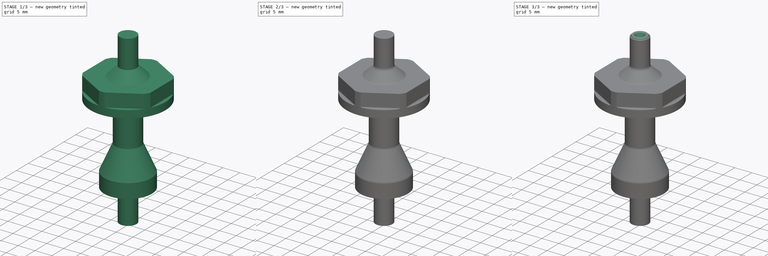
[diagram: build sequence overview — one tinted view per stage of 3, left to right]
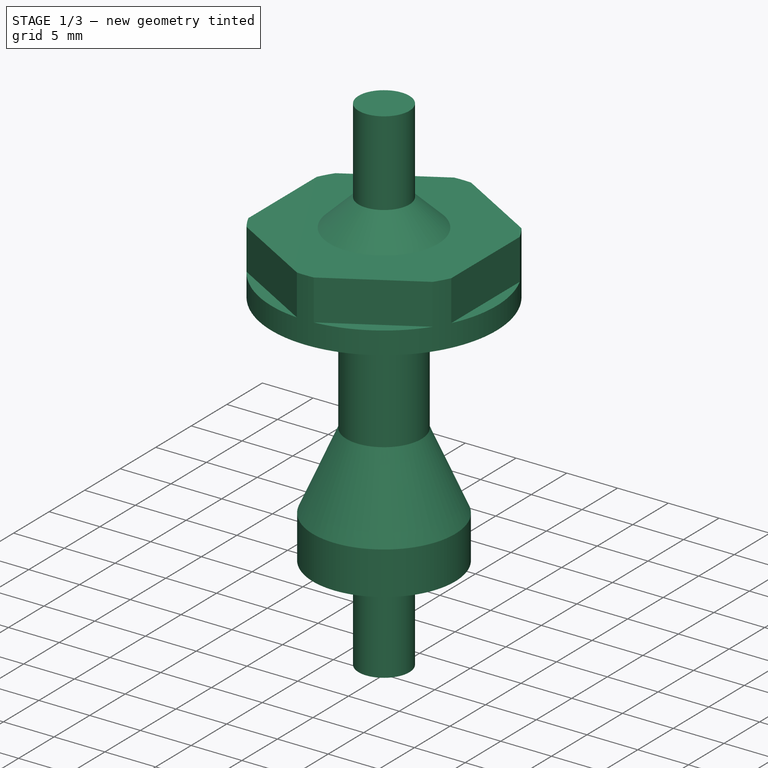
[diagram: stage 1 of 3 — iso view after this stage's code; geometry added in this stage tinted green]
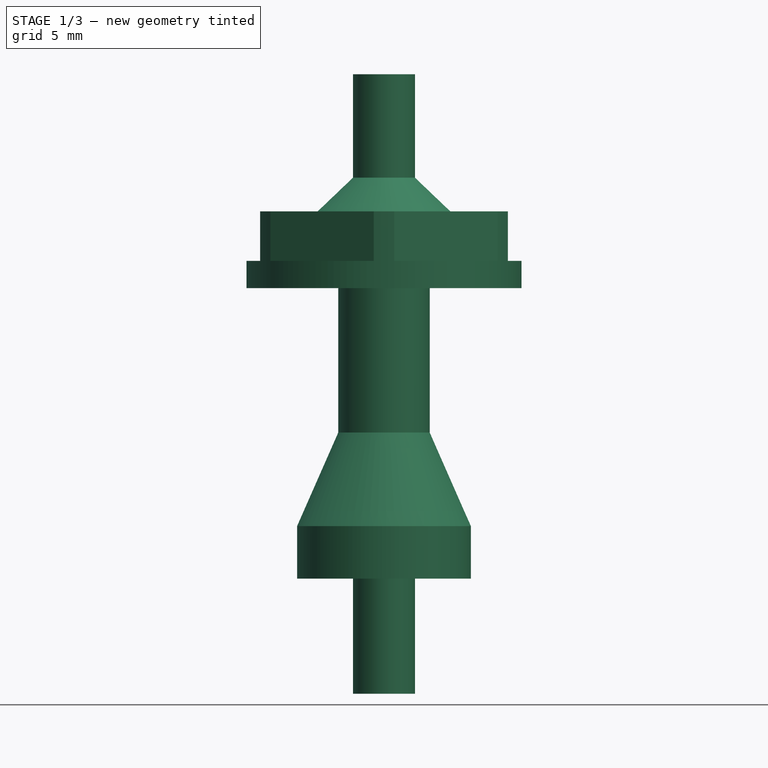
[diagram: stage 1 of 3 — front view after this stage's code; geometry added in this stage tinted green]
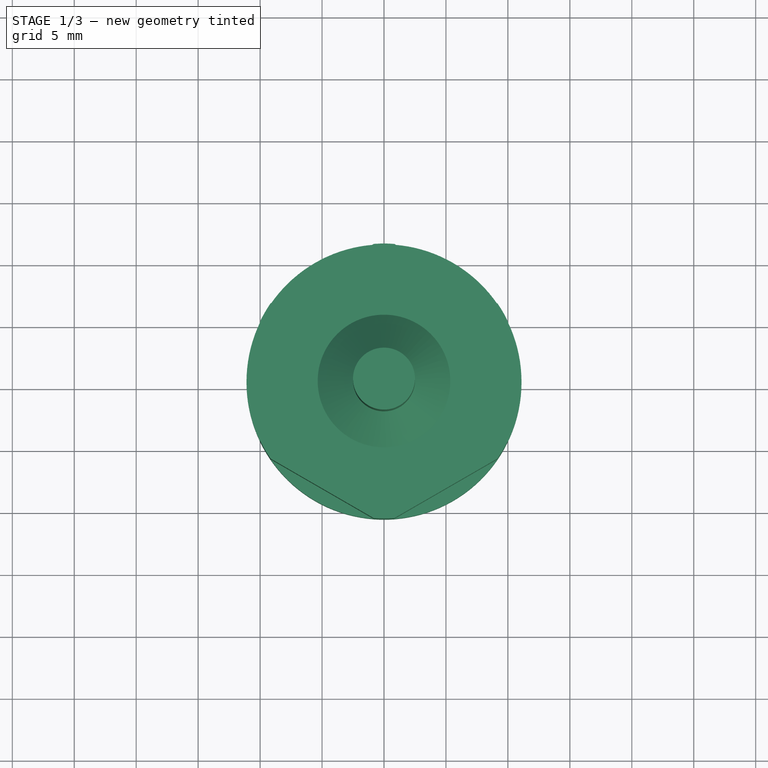
[diagram: stage 1 of 3 — top view after this stage's code; geometry added in this stage tinted green]
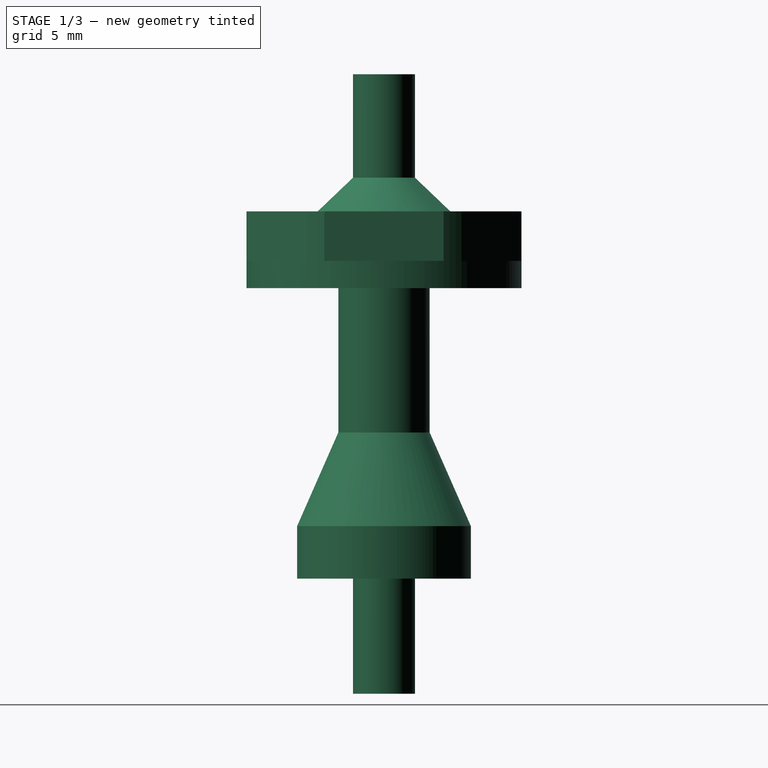
[diagram: stage 1 of 3 — right view after this stage's code; geometry added in this stage tinted green]
FCSTD DOCUMENT  (FreeCAD 0.18R15841 (Git))
Label: Test_Block_01
License: All rights reserved
LicenseURL: http://en.wikipedia.org/wiki/All_rights_reserved
objects: Sketcher::SketchObject×4, PartDesign::CoordinateSystem×2, PartDesign::Fillet×2, App::DocumentObjectGroup×1, PartDesign::Revolution×1, PartDesign::Pocket×1, PartDesign::Chamfer×1, PartDesign::Hole×1, PartDesign::Body×1, App::Part×1
note: 16 computed .brp shape members not serialized (recipe doc carries the construction recipe); baked Part::Feature solids carry a one-line shape summary decoded from their .brp

FEATURE [App::DocumentObjectGroup] Constraints
FEATURE [PartDesign::CoordinateSystem] LCS_0
  AttacherType = Attacher::AttachEngine3D
FEATURE [Sketcher::SketchObject] Sketch
  MapMode = 5
  Placement = pos=(0,0,0) rot=(1,0,0;1.5708rad)
  Support = -> [XZ_Plane001]
  sketch-geometry (13):
    g0: LineSegment StartX=0 StartY=0 StartZ=0 EndX=0 EndY=50 EndZ=0
    g1: LineSegment StartX=0 StartY=50 StartZ=0 EndX=-2.5 EndY=50 EndZ=0
    g2: LineSegment StartX=-2.5 StartY=0 StartZ=0 EndX=0 EndY=0 EndZ=0
    g3: LineSegment StartX=-2.5 StartY=50 StartZ=0 EndX=-2.5 EndY=41.6565 EndZ=0
    g4: LineSegment StartX=-2.5 StartY=41.6565 StartZ=0 EndX=-5.35185 EndY=38.9344 EndZ=0
    g5: LineSegment StartX=-5.35185 StartY=38.9344 StartZ=0 EndX=-11.0984 EndY=38.9344 EndZ=0
    g6: LineSegment StartX=-11.0984 StartY=38.9344 StartZ=0 EndX=-11.0984 EndY=32.7343 EndZ=0
    g7: LineSegment StartX=-11.0984 StartY=32.7343 StartZ=0 EndX=-3.68841 EndY=32.7343 EndZ=0
    g8: LineSegment StartX=-3.68841 StartY=32.7343 StartZ=0 EndX=-3.68841 EndY=21.0901 EndZ=0
    g9: LineSegment StartX=-3.68841 StartY=21.0901 StartZ=0 EndX=-7.01531 EndY=13.5289 EndZ=0
    g10: LineSegment StartX=-7.01531 StartY=13.5289 StartZ=0 EndX=-7.01531 EndY=9.29466 EndZ=0
    g11: LineSegment StartX=-7.01531 StartY=9.29466 StartZ=0 EndX=-2.5 EndY=9.29466 EndZ=0
    g12: LineSegment StartX=-2.5 StartY=9.29466 StartZ=0 EndX=-2.5 EndY=0 EndZ=0
  constraints (28):
    c: Vertical(g0)
    c: Coincident(g0,g1)
    c: Horizontal(g1)
    c: PointOnObject(g2,g-1)
    c: Coincident(g2,g0)
    c: Coincident(g0,g-1)
    c: DistanceY(g0,g0) = 50
    c: DistanceX(g2,g2) = 2.5
    c: Equal(g1,g2)
    c: Coincident(g1,g3)
    c: Coincident(g3,g4)
    c: Coincident(g4,g5)
    c: Horizontal(g5)
    c: Coincident(g5,g6)
    c: Vertical(g6)
    c: Coincident(g6,g7)
    c: Coincident(g7,g8)
    c: Vertical(g8)
    c: Coincident(g8,g9)
    c: Coincident(g9,g10)
    c: Coincident(g10,g11)
    c: Coincident(g11,g12)
    c: Coincident(g12,g2)
    c: Vertical(g12)
    c: Horizontal(g7)
    c: Vertical(g3)
    c: Vertical(g10)
    c: Horizontal(g11)
FEATURE [PartDesign::Revolution] Revolution
  Angle = 360
  Axis = (0,-2e-16,1)
  Base = (0,0,0)
  ClaimChildren = false
  Placement = pos=(0,0,0) rot=(1,0,0;1.5708rad)
  Profile = -> Sketch
  ReferenceAxis = -> Sketch [V_Axis]
FEATURE [Sketcher::SketchObject] Sketch001
  MapMode = 5
  Placement = pos=(0,-1.11e-14,50) rot=(0,0,1;3.14159rad)
  Support = -> [Revolution]
  sketch-geometry (2):
    g0: LineSegment StartX=2.12132 StartY=-2.12132 StartZ=0 EndX=0 EndY=0 EndZ=0
    g1: LineSegment StartX=0 StartY=0 StartZ=0 EndX=3.53553 EndY=3.53553 EndZ=0
  constraints (6):
    c: Coincident(g0,g-1)
    c: Coincident(g0,g1)
    c: Perpendicular(g1,g0)
    c: Distance(g0) = 3
    c: Distance(g1) = 5
    c: Angle(g-1,g1) = 0.785398
FEATURE [PartDesign::CoordinateSystem] LCS_1
  AttacherType = Attacher::AttachEngine3D
  MapMode = 49
  Placement = pos=(0,-1.11e-14,50) rot=(-0.382683,0.92388,0;3.14159rad)
  Support = -> [Sketch001]
FEATURE [Sketcher::SketchObject] Sketch002
  ExternalGeometry = -> [Revolution]
  MapMode = 5
  Placement = pos=(0,-8.6e-15,38.9344) rot=(0,0,1;3.14159rad)
  Support = -> [Revolution]
  sketch-geometry (9):
    g0: LineSegment StartX=0 StartY=11.547 StartZ=0 EndX=-10 EndY=5.7735 EndZ=0
    g1: LineSegment StartX=-10 StartY=5.7735 StartZ=0 EndX=-10 EndY=-5.7735 EndZ=0
    g2: LineSegment StartX=-10 StartY=-5.7735 StartZ=0 EndX=0 EndY=-11.547 EndZ=0
    g3: LineSegment StartX=-5e-16 StartY=-11.547 StartZ=0 EndX=10 EndY=-5.7735 EndZ=0
    g4: LineSegment StartX=10 StartY=-5.7735 StartZ=0 EndX=10 EndY=5.7735 EndZ=0
    g5: LineSegment StartX=10 StartY=5.7735 StartZ=0 EndX=0 EndY=11.547 EndZ=0
    g6: Circle [constr] CenterX=0 CenterY=0 CenterZ=0 NormalX=0 NormalY=0 NormalZ=1 AngleXU=0 Radius=11.547
    g7: Circle CenterX=0 CenterY=0 CenterZ=0 NormalX=0 NormalY=0 NormalZ=1 AngleXU=0 Radius=14.547
    g8: LineSegment [constr] StartX=-5e-16 StartY=-11.547 StartZ=0 EndX=-5e-16 EndY=-14.547 EndZ=0
  constraints (21):
    c: Coincident(g0,g1)
    c: Coincident(g1,g2)
    c: Coincident(g2,g3)
    c: Coincident(g3,g4)
    c: Coincident(g4,g5)
    c: Coincident(g5,g0)
    c: Equal(g0, g1-g5) x5
    c: PointOnObject(g0,g6)
    c: PointOnObject(g1,g6)
    c: PointOnObject(g2,g6)
    c: PointOnObject(g3,g6)
    c: PointOnObject(g4,g6)
    c: PointOnObject(g5,g6)
    c: Coincident(g6,g-1)
    c: PointOnObject(g5,g-2)
    c: Coincident(g7,g-1)
    c: Coincident(g2,g8)
    c: Vertical(g8)
    c: DistanceY(g8,g8) = 3
    c: PointOnObject(g8,g7)
    c: Distance(g0,g3) = 20
FEATURE [PartDesign::Pocket] Pocket
  BaseFeature = -> Revolution
  ClaimChildren = false
  Length = 4
  Length2 = 100
  Placement = pos=(0,0,0) rot=(1,0,0;1.5708rad)
  Profile = -> Sketch002
  Type = 0
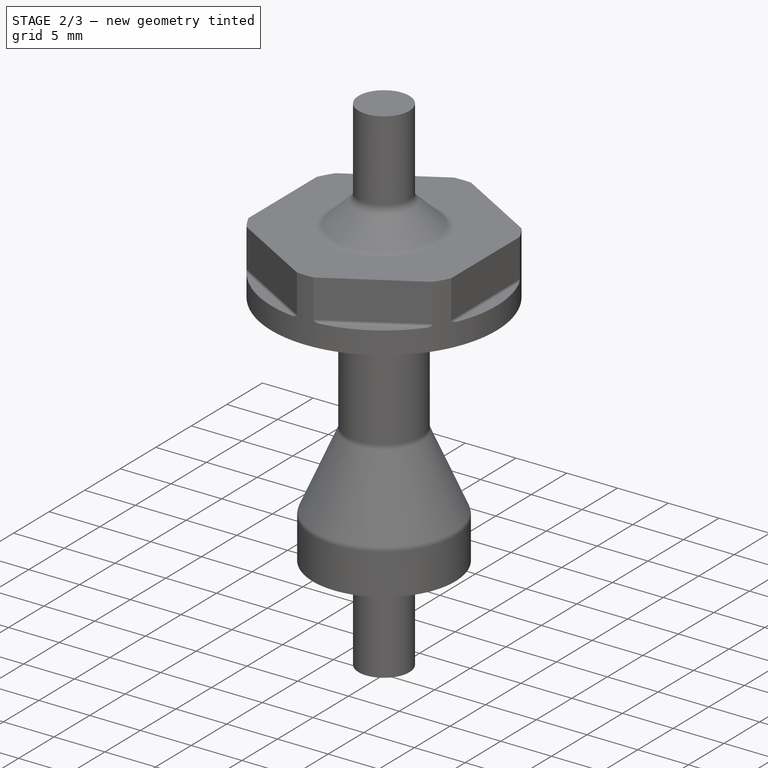
[diagram: stage 2 of 3 — iso view after this stage's code; geometry added in this stage tinted green]
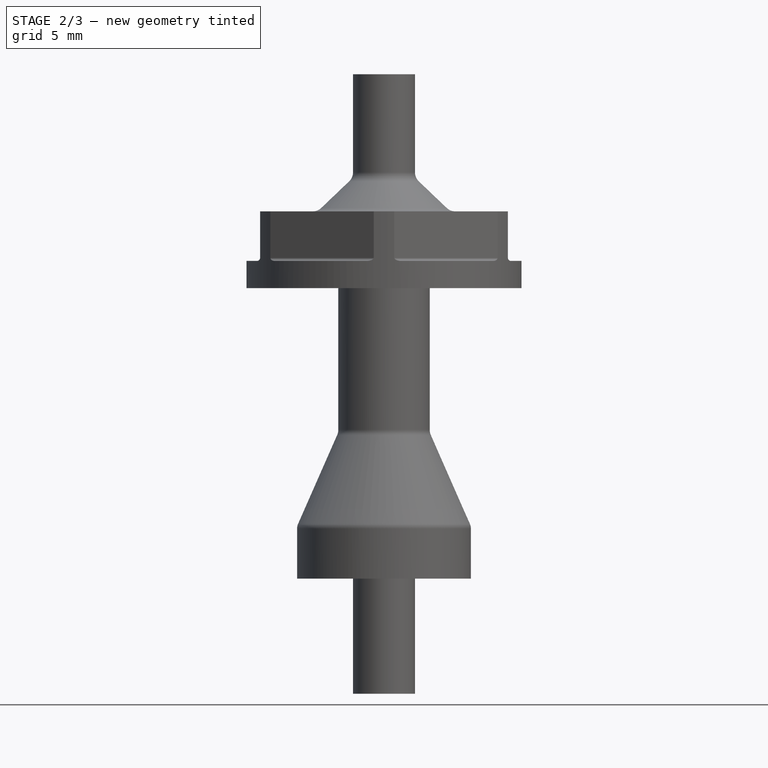
[diagram: stage 2 of 3 — front view after this stage's code; geometry added in this stage tinted green]
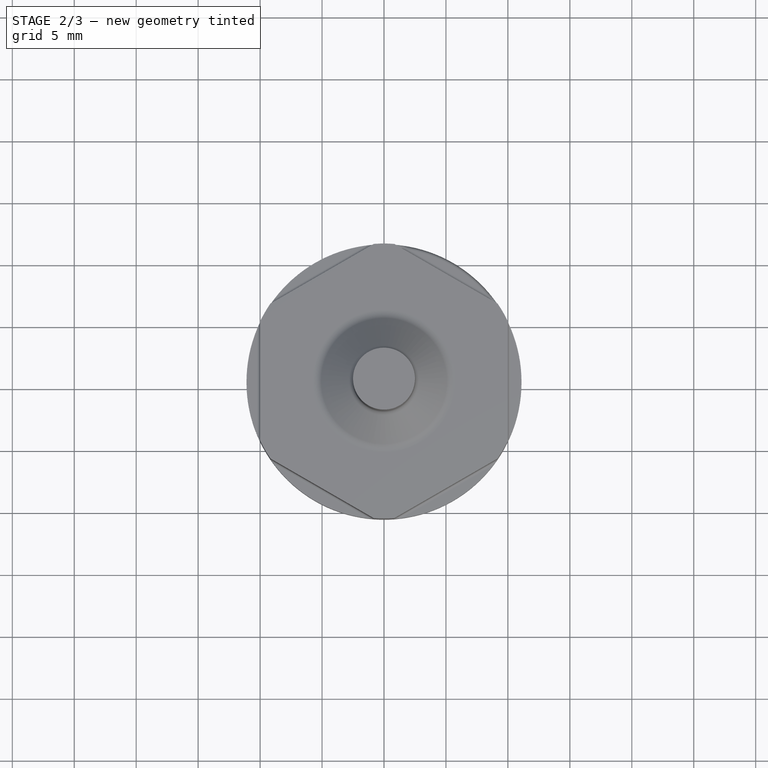
[diagram: stage 2 of 3 — top view after this stage's code; geometry added in this stage tinted green]
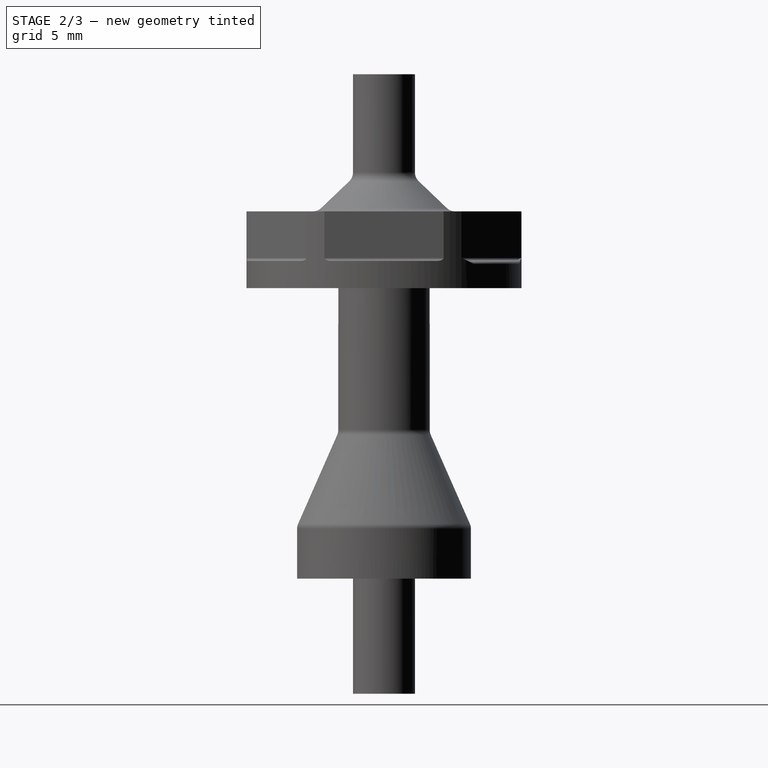
[diagram: stage 2 of 3 — right view after this stage's code; geometry added in this stage tinted green]
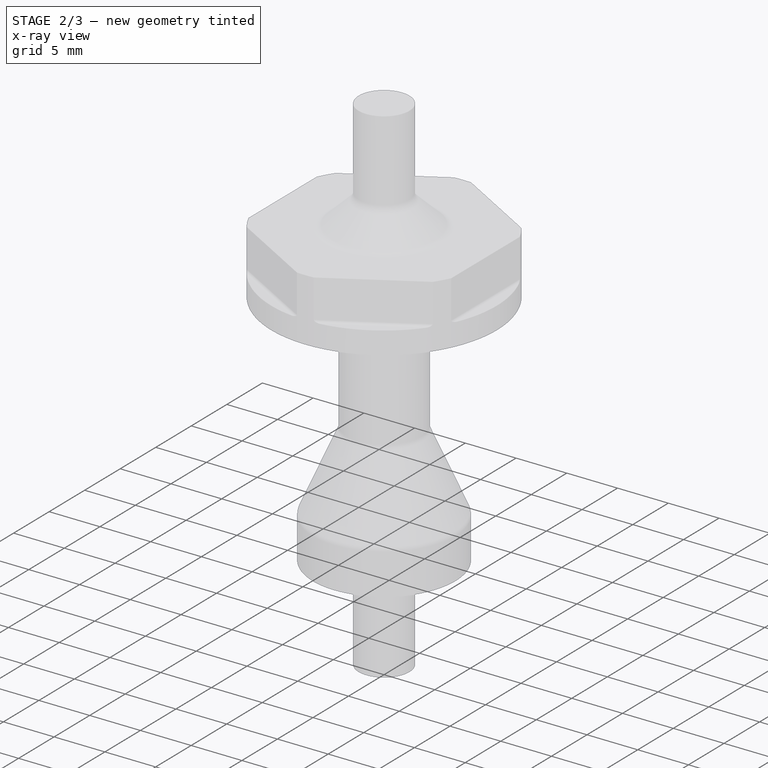
[diagram: stage 2 of 3 — x-ray composite at the iso view; earlier geometry ghosted, this stage's added geometry solid]
FEATURE [PartDesign::Fillet] Fillet
  Base = -> Pocket [Edge39,Edge44,Edge40,Edge41,Face15,Edge43]
  BaseFeature = -> Pocket
  Placement = pos=(0,0,0) rot=(1,0,0;1.5708rad)
  Radius = 0.25
FEATURE [PartDesign::Fillet] Fillet001
  Base = -> Fillet [Edge64,Edge48,Edge66,Edge71]
  BaseFeature = -> Fillet
  Placement = pos=(0,0,0) rot=(1,0,0;1.5708rad)
  Radius = 1
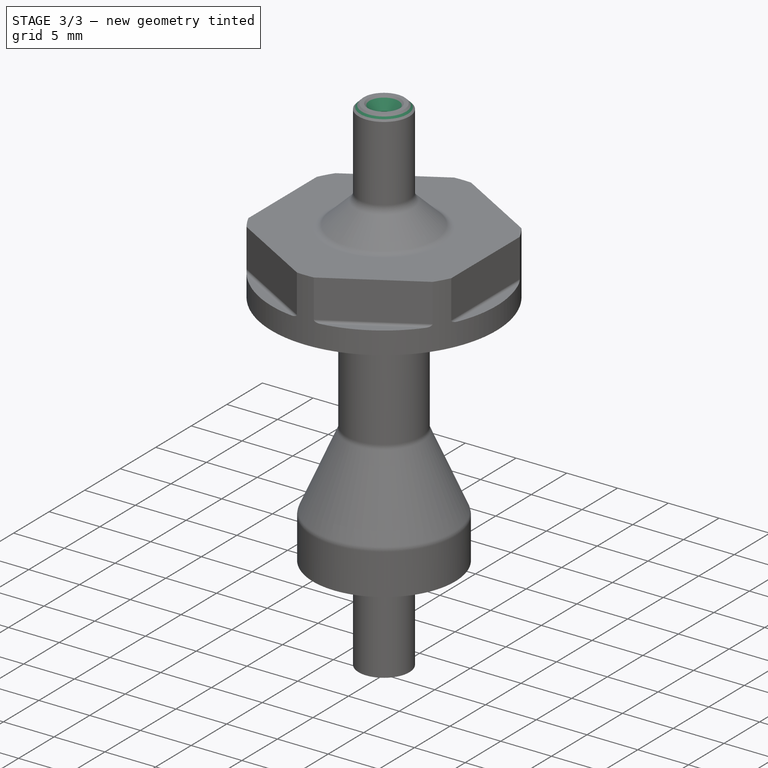
[diagram: stage 3 of 3 — iso view after this stage's code; geometry added in this stage tinted green]
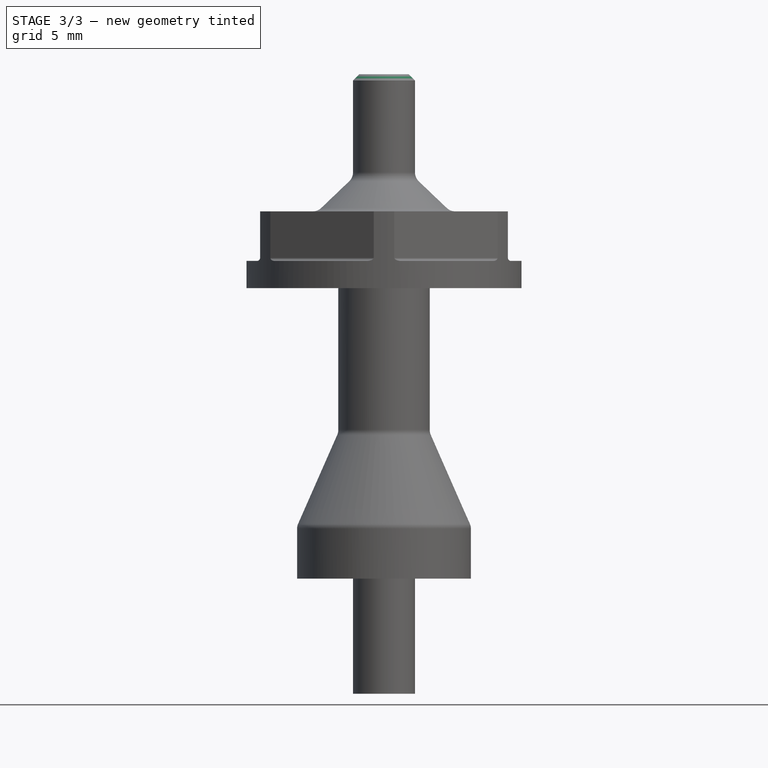
[diagram: stage 3 of 3 — front view after this stage's code; geometry added in this stage tinted green]
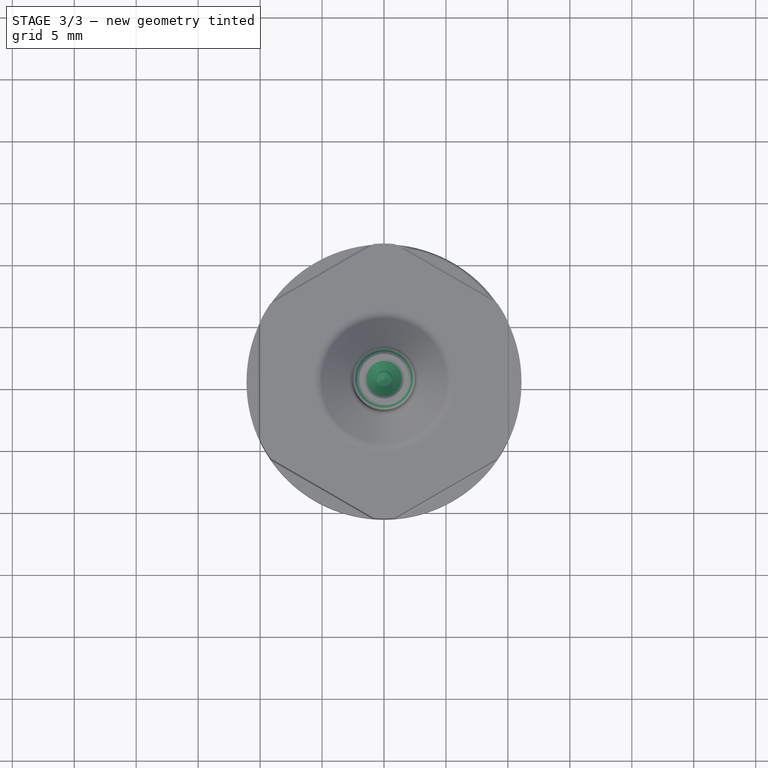
[diagram: stage 3 of 3 — top view after this stage's code; geometry added in this stage tinted green]
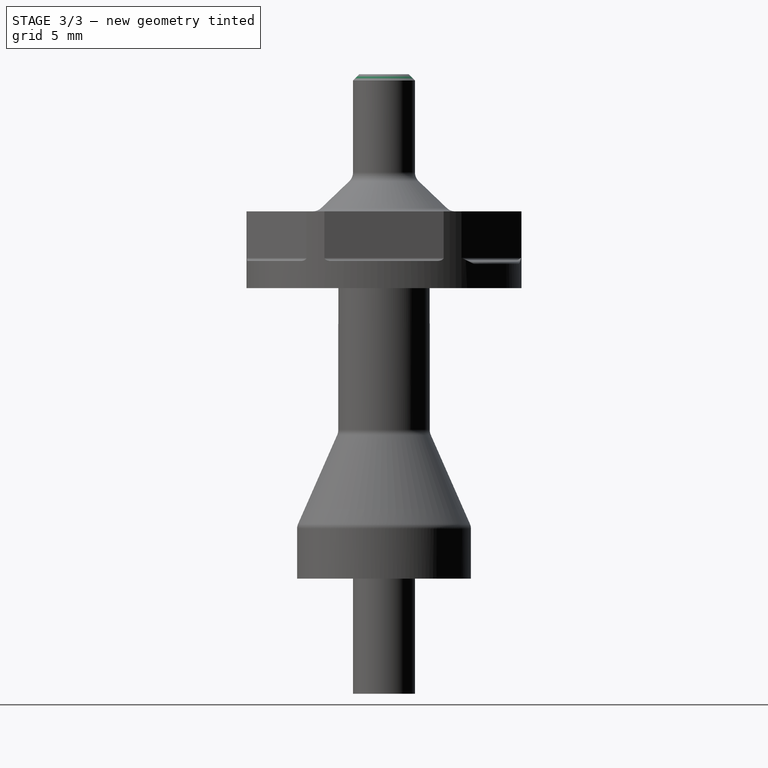
[diagram: stage 3 of 3 — right view after this stage's code; geometry added in this stage tinted green]
FEATURE [PartDesign::Chamfer] Chamfer
  Base = -> Fillet001 [Edge74]
  BaseFeature = -> Fillet001
  Placement = pos=(0,0,0) rot=(1,0,0;1.5708rad)
  Size = 0.5
FEATURE [Sketcher::SketchObject] Sketch003
  MapMode = 5
  Placement = pos=(0,-1.11e-14,50) rot=(0,0,1;3.14159rad)
  Support = -> [Chamfer]
  sketch-geometry (1):
    g0: Circle CenterX=0 CenterY=0 CenterZ=0 NormalX=0 NormalY=0 NormalZ=1 AngleXU=0 Radius=0.5
  constraints (2):
    c: Coincident(g0,g-1)
    c: Radius(g0) = 0.5
FEATURE [PartDesign::Hole] Hole
  BaseFeature = -> Chamfer
  ClaimChildren = false
  Depth = 5
  DepthType = 0
  Diameter = 1.25
  DrillPoint = 1
  DrillPointAngle = 118
  HoleCutCountersinkAngle = 90
  HoleCutDepth = 0
  HoleCutDiameter = 3.2
  HoleCutType = 2
  ModelActualThread = false
  Placement = pos=(0,0,0) rot=(1,0,0;1.5708rad)
  Profile = -> Sketch003
  Tapered = false
  TaperedAngle = 90
  ThreadAngle = 60
  ThreadClass = 0
  ThreadCutOffInner = 0.0378886
  ThreadCutOffOuter = 0.0757772
  ThreadDirection = 1
  ThreadFit = 0
  ThreadPitch = 0.35
  ThreadSize = 0
  ThreadType = 1
  Threaded = true
FEATURE [PartDesign::Body] Body
  Group = -> [Sketch001,Sketch,Revolution,Sketch002,Pocket,Fillet,Fillet001,Chamfer,Sketch003,Hole]
  Origin = -> Origin001
  Tip = -> Hole
FEATURE [App::Part] Model
  Group = -> [Constraints,LCS_0,Body,LCS_1]
  Origin = -> Origin
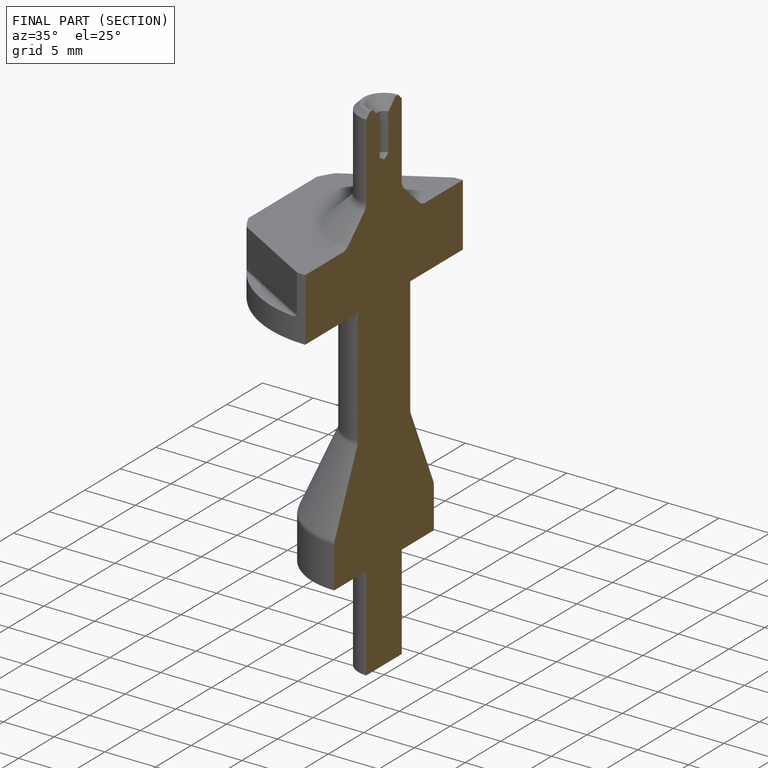
[diagram: finished part — half-section view (interior)]
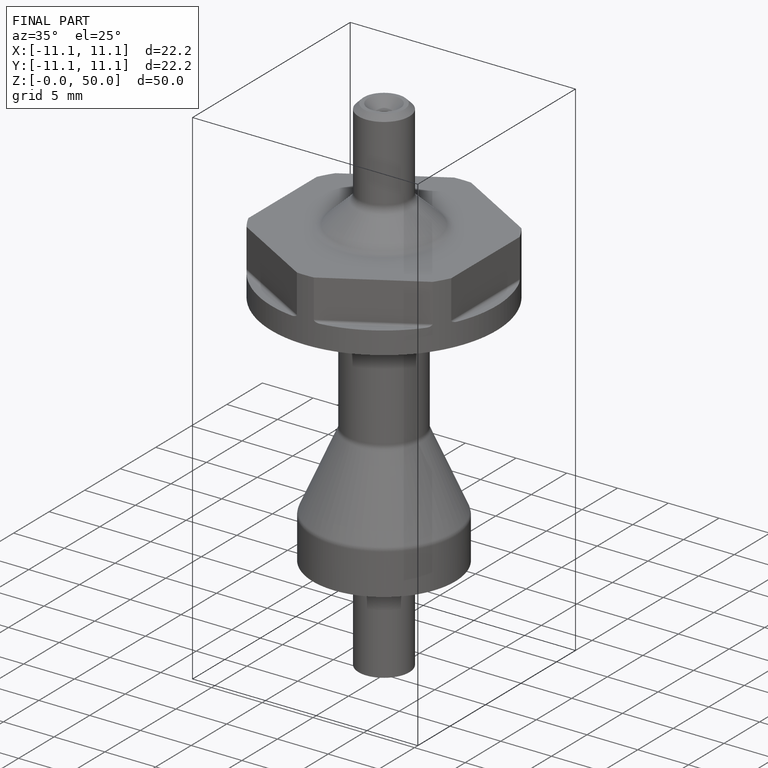
[diagram: finished part — iso view with bounding-box wireframe]
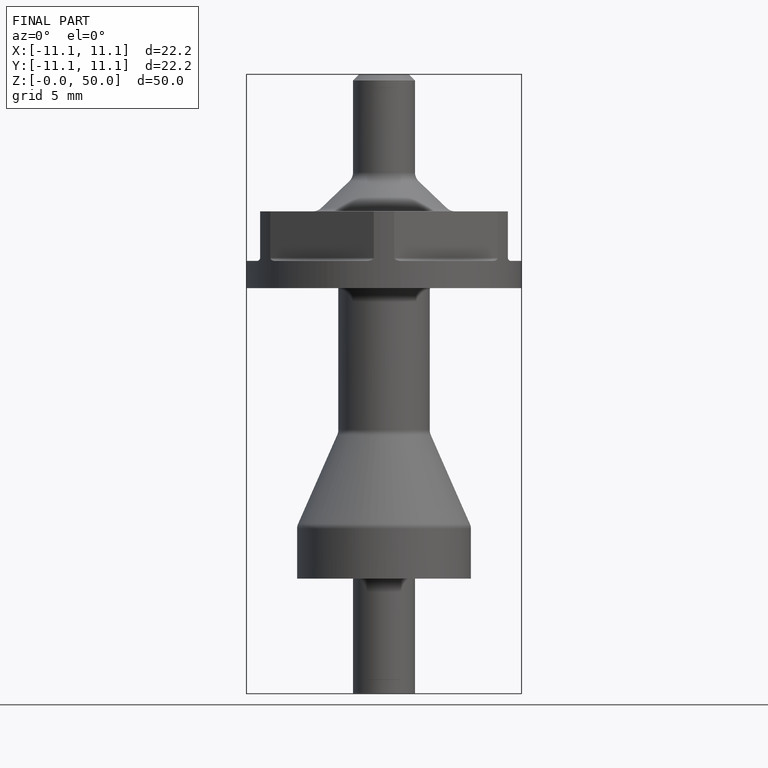
[diagram: finished part — front view with bounding-box wireframe]
